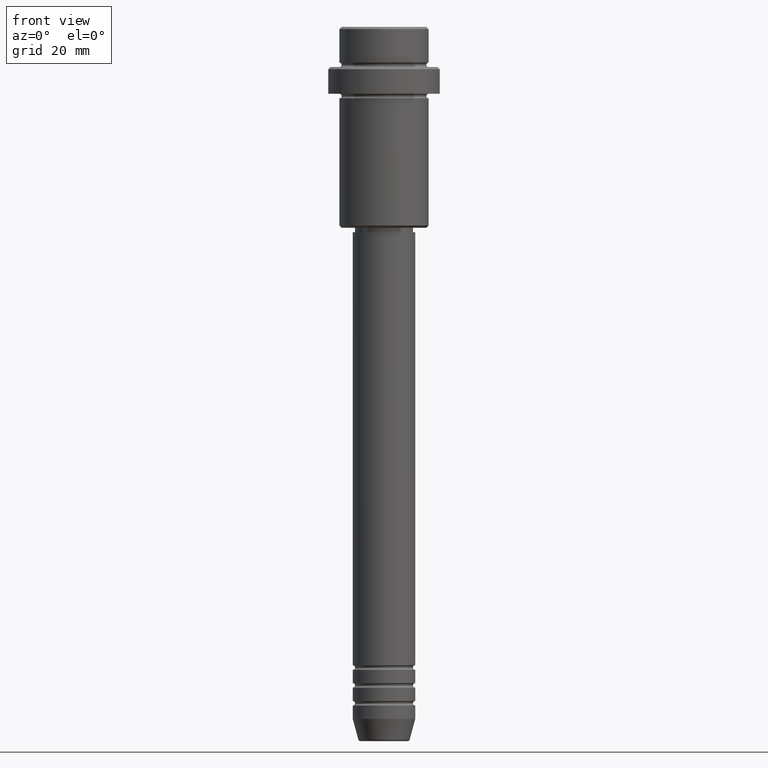
[diagram: clean part render]
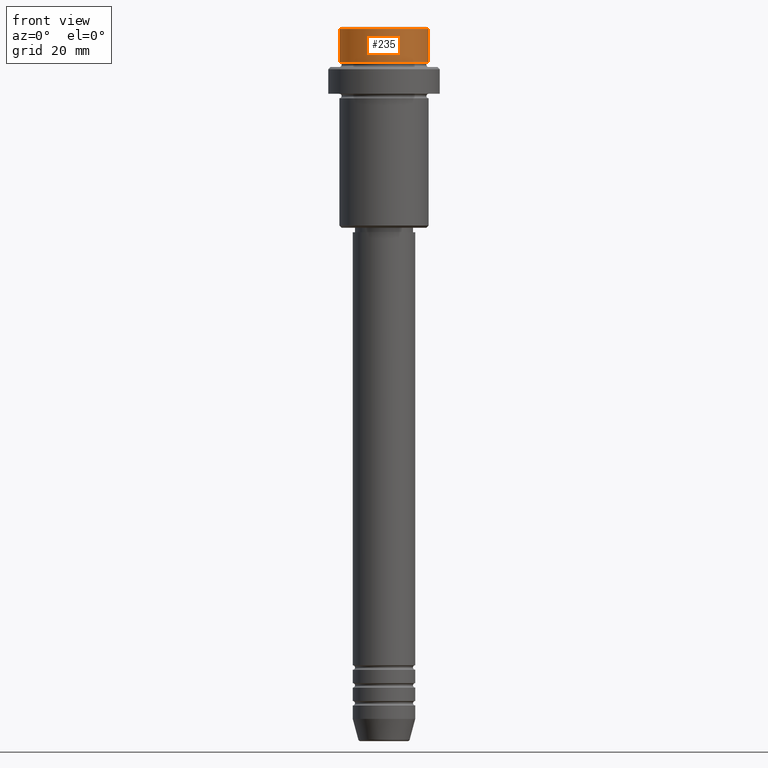
[diagram: same view with one face highlighted and labeled with its STEP entity id]
A machine part, front view. The second image highlights one B-rep face of the part: STEP entity #235.
In plain terms, the highlighted cylindrical surface (partial cylindrical patch) has radius 10 mm, axis along (-0, -0, 1).
Its self-contained STEP definition (entity closure, byte-faithful):
#48 = CARTESIAN_POINT ( 'NONE',  ( 9.999999999999998224, 0.000000000000000000, -0.4999999999999970024 ) ) ;
#81 = DIRECTION ( 'NONE',  ( -0.000000000000000000, -0.000000000000000000, 1.000000000000000000 ) ) ;
#91 = VERTEX_POINT ( 'NONE', #48 ) ;
#138 = ORIENTED_EDGE ( 'NONE', *, *, #1330, .T. ) ;
#200 = ORIENTED_EDGE ( 'NONE', *, *, #984, .F. ) ;
#201 = EDGE_LOOP ( 'NONE', ( #200, #138, #1246, #891 ) ) ;
#227 = DIRECTION ( 'NONE',  ( 1.000000000000000000, 0.000000000000000000, 0.000000000000000000 ) ) ;
#235 = ADVANCED_FACE ( 'NONE', ( #552 ), #1102, .T. ) ;
#243 = CIRCLE ( 'NONE', #713, 9.999999999999998224 ) ;
#348 = DIRECTION ( 'NONE',  ( -0.000000000000000000, -0.000000000000000000, 1.000000000000000000 ) ) ;
#411 = EDGE_CURVE ( 'NONE', #91, #1371, #243, .T. ) ;
#424 = DIRECTION ( 'NONE',  ( 1.000000000000000000, 0.000000000000000000, 0.000000000000000000 ) ) ;
#441 = CARTESIAN_POINT ( 'NONE',  ( 9.999999999999998224, 0.000000000000000000, 0.000000000000000000 ) ) ;
#484 = DIRECTION ( 'NONE',  ( -0.000000000000000000, -0.000000000000000000, 1.000000000000000000 ) ) ;
#535 = AXIS2_PLACEMENT_3D ( 'NONE', #858, #81, #424 ) ;
#552 = FACE_OUTER_BOUND ( 'NONE', #201, .T. ) ;
#579 = CARTESIAN_POINT ( 'NONE',  ( 0.000000000000000000, 0.000000000000000000, -7.999999999999998224 ) ) ;
#690 = AXIS2_PLACEMENT_3D ( 'NONE', #579, #348, #227 ) ;
#713 = AXIS2_PLACEMENT_3D ( 'NONE', #911, #925, #1331 ) ;
#716 = VECTOR ( 'NONE', #1119, 1000.000000000000000 ) ;
#733 = CARTESIAN_POINT ( 'NONE',  ( -9.999999999999998224, 1.224646799147353059E-15, -7.999999999999998224 ) ) ;
#816 = CARTESIAN_POINT ( 'NONE',  ( -9.999999999999998224, 1.224646799147353059E-15, -0.4999999999999970024 ) ) ;
#858 = CARTESIAN_POINT ( 'NONE',  ( 0.000000000000000000, 0.000000000000000000, 0.000000000000000000 ) ) ;
#891 = ORIENTED_EDGE ( 'NONE', *, *, #411, .T. ) ;
#911 = CARTESIAN_POINT ( 'NONE',  ( 0.000000000000000000, 0.000000000000000000, -0.4999999999999970024 ) ) ;
#925 = DIRECTION ( 'NONE',  ( 0.000000000000000000, 0.000000000000000000, -1.000000000000000000 ) ) ;
#975 = VERTEX_POINT ( 'NONE', #733 ) ;
#984 = EDGE_CURVE ( 'NONE', #975, #1371, #1268, .T. ) ;
#1102 = CYLINDRICAL_SURFACE ( 'NONE', #535, 9.999999999999998224 ) ;
#1119 = DIRECTION ( 'NONE',  ( -0.000000000000000000, -0.000000000000000000, 1.000000000000000000 ) ) ;
#1123 = VERTEX_POINT ( 'NONE', #1198 ) ;
#1144 = CARTESIAN_POINT ( 'NONE',  ( -9.999999999999998224, 1.224646799147353059E-15, 0.000000000000000000 ) ) ;
#1198 = CARTESIAN_POINT ( 'NONE',  ( 9.999999999999998224, 0.000000000000000000, -7.999999999999998224 ) ) ;
#1246 = ORIENTED_EDGE ( 'NONE', *, *, #1255, .T. ) ;
#1255 = EDGE_CURVE ( 'NONE', #1123, #91, #1416, .T. ) ;
#1268 = LINE ( 'NONE', #1144, #1298 ) ;
#1298 = VECTOR ( 'NONE', #484, 1000.000000000000000 ) ;
#1323 = CIRCLE ( 'NONE', #690, 9.999999999999998224 ) ;
#1330 = EDGE_CURVE ( 'NONE', #975, #1123, #1323, .T. ) ;
#1331 = DIRECTION ( 'NONE',  ( 1.000000000000000000, 0.000000000000000000, 0.000000000000000000 ) ) ;
#1371 = VERTEX_POINT ( 'NONE', #816 ) ;
#1416 = LINE ( 'NONE', #441, #716 ) ;